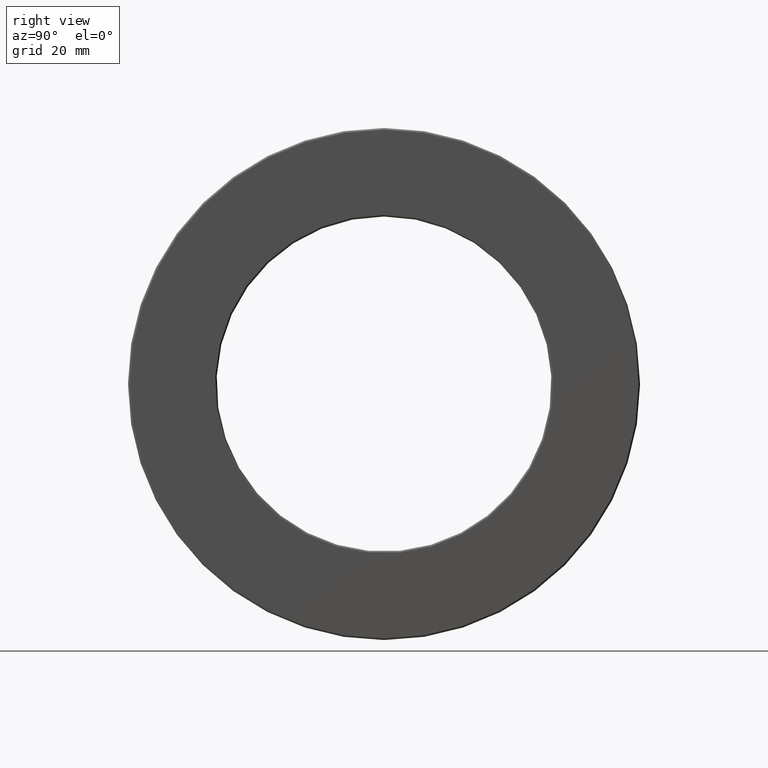
[diagram: clean part render]
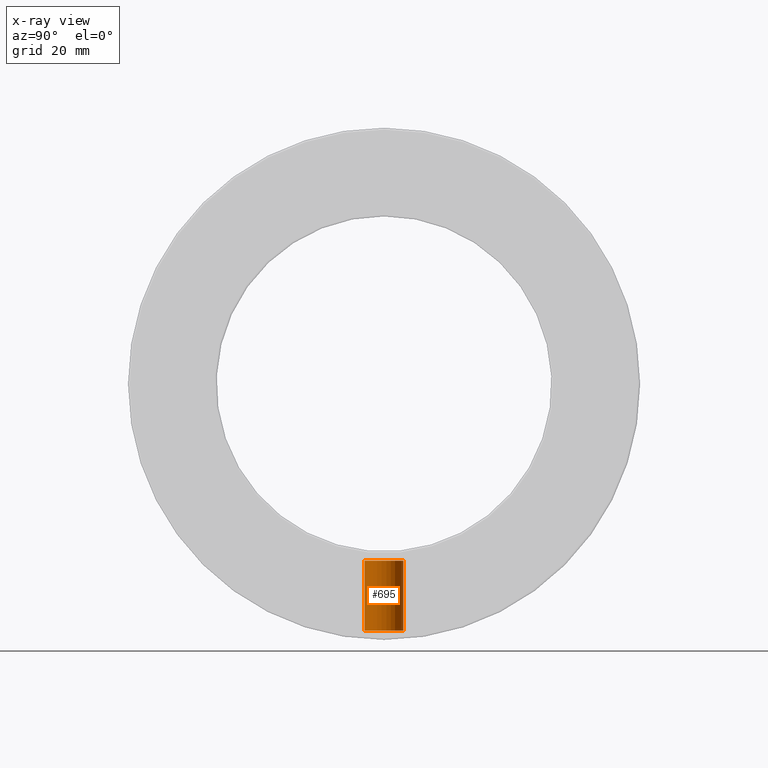
[diagram: x-ray — body ghosted, one internal face saturated and labeled with its STEP entity id]
A machine part, right view, then the same camera in x-ray: the body is ghosted and one INTERNAL B-rep face — a face not visible from any outside direction — is saturated and labeled: STEP entity #695.
In plain terms, the highlighted cylindrical surface (bore or boss wall) has radius 4.7625 mm, axis along (0, -0, -1).
Its self-contained STEP definition (entity closure, byte-faithful):
#111 = CIRCLE ( 'NONE', #322, 0.1874999999999998300 ) ;
#211 = DIRECTION ( 'NONE',  ( 0.0000000000000000000, -3.491481338843133400E-015, -1.000000000000000000 ) ) ;
#246 = CIRCLE ( 'NONE', #842, 0.1875000000000000600 ) ;
#285 = VERTEX_POINT ( 'NONE', #1375 ) ;
#322 = AXIS2_PLACEMENT_3D ( 'NONE', #556, #211, #892 ) ;
#379 = AXIS2_PLACEMENT_3D ( 'NONE', #1445, #1361, #1121 ) ;
#385 = EDGE_LOOP ( 'NONE', ( #530 ) ) ;
#471 = EDGE_CURVE ( 'NONE', #285, #285, #246, .T. ) ;
#486 = DIRECTION ( 'NONE',  ( 0.0000000000000000000, 1.000000000000000000, -2.913971193241880000E-015 ) ) ;
#530 = ORIENTED_EDGE ( 'NONE', *, *, #1221, .F. ) ;
#556 = CARTESIAN_POINT ( 'NONE',  ( 0.0000000000000000000, -8.359915630692526400E-015, -2.394374999999999700 ) ) ;
#607 = CARTESIAN_POINT ( 'NONE',  ( 0.0000000000000000000, -5.987890496115975000E-015, -1.715000000000000100 ) ) ;
#608 = FACE_OUTER_BOUND ( 'NONE', #1331, .T. ) ;
#695 = ADVANCED_FACE ( 'NONE', ( #608, #803 ), #1270, .T. ) ;
#803 = FACE_OUTER_BOUND ( 'NONE', #385, .T. ) ;
#842 = AXIS2_PLACEMENT_3D ( 'NONE', #607, #1159, #486 ) ;
#892 = DIRECTION ( 'NONE',  ( 0.0000000000000000000, 1.000000000000000000, -2.913971193241883500E-015 ) ) ;
#925 = VERTEX_POINT ( 'NONE', #1052 ) ;
#1052 = CARTESIAN_POINT ( 'NONE',  ( 0.0000000000000000000, 0.1874999999999914800, -2.394375000000000100 ) ) ;
#1121 = DIRECTION ( 'NONE',  ( 0.0000000000000000000, 1.000000000000000000, -3.491481338843133400E-015 ) ) ;
#1159 = DIRECTION ( 'NONE',  ( 0.0000000000000000000, -3.491481338843133400E-015, -1.000000000000000000 ) ) ;
#1221 = EDGE_CURVE ( 'NONE', #925, #925, #111, .T. ) ;
#1270 = CYLINDRICAL_SURFACE ( 'NONE', #379, 0.1874999999999999400 ) ;
#1282 = ORIENTED_EDGE ( 'NONE', *, *, #471, .T. ) ;
#1331 = EDGE_LOOP ( 'NONE', ( #1282 ) ) ;
#1361 = DIRECTION ( 'NONE',  ( 0.0000000000000000000, -3.491481338843133400E-015, -1.000000000000000000 ) ) ;
#1375 = CARTESIAN_POINT ( 'NONE',  ( 0.0000000000000000000, 0.1874999999999940600, -1.715000000000000700 ) ) ;
#1445 = CARTESIAN_POINT ( 'NONE',  ( 0.0000000000000000000, 0.0000000000000000000, 0.0000000000000000000 ) ) ;